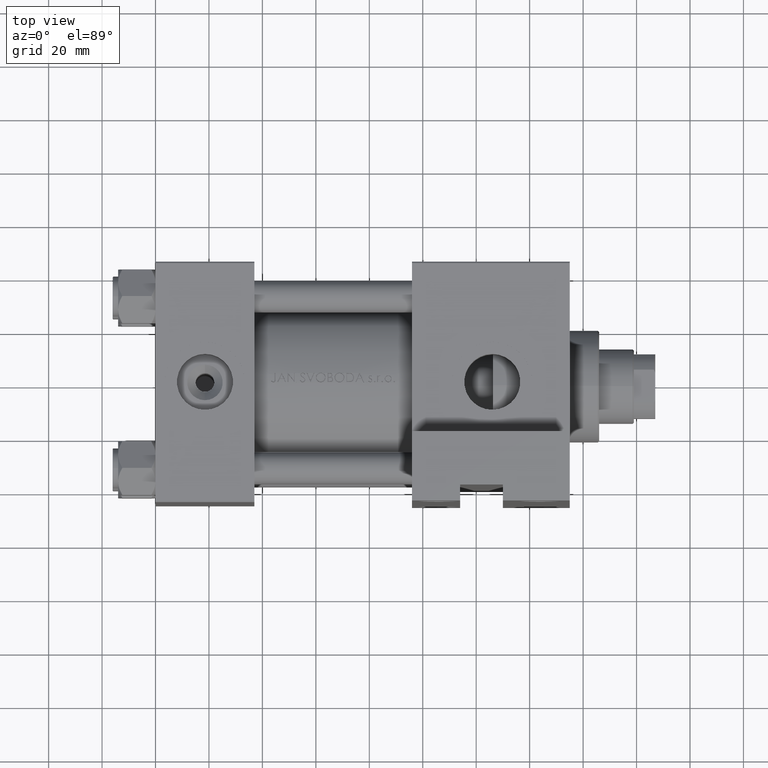
[diagram: clean part render]
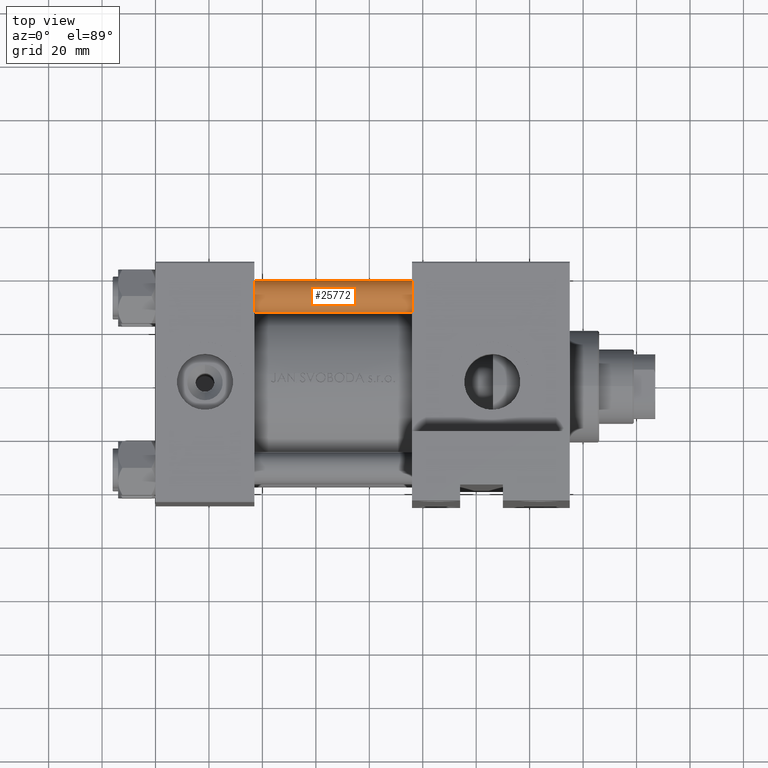
[diagram: same view with one face highlighted and labeled with its STEP entity id]
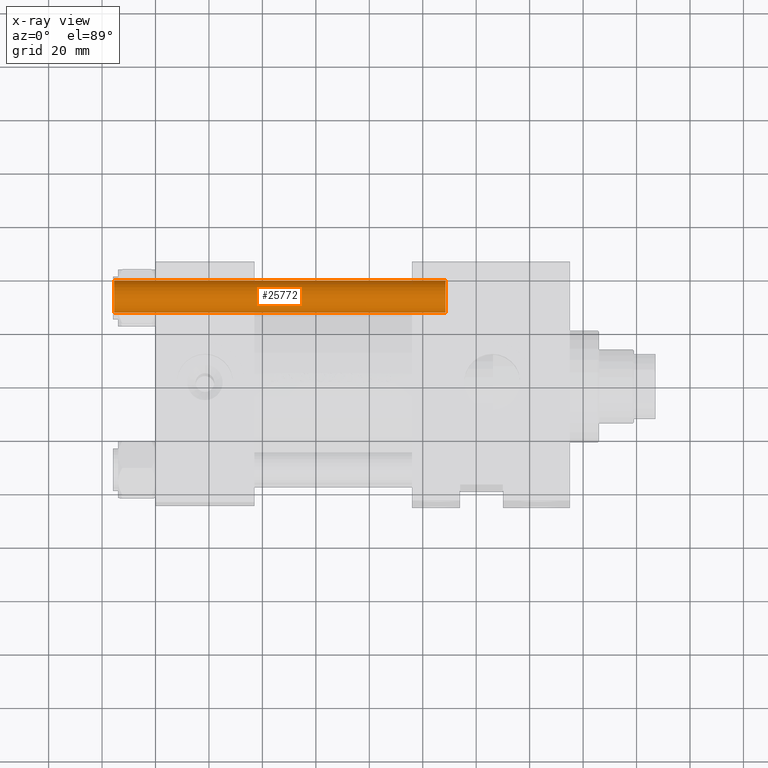
[diagram: x-ray of the same camera — body ghosted, the highlighted face saturated]
A machine part, top view. The second image highlights one B-rep face of the part: STEP entity #25772.
The next image is the same camera in x-ray: the body ghosted, the highlighted face saturated — about 0% of this face is hidden behind the body in this view.
In plain terms, the highlighted cylindrical surface (edge-blend (fillet) strip) has radius 6 mm, axis along (1, -0, 0).
Its self-contained STEP definition (entity closure, byte-faithful):
#1725 = CARTESIAN_POINT ( 'NONE',  ( 6.000000000000000888, 7.347880794884120722E-16, 0.4999999999999865663 ) ) ;
#2341 = CARTESIAN_POINT ( 'NONE',  ( 0.000000000000000000, 0.000000000000000000, 124.5000000000000000 ) ) ;
#4310 = ORIENTED_EDGE ( 'NONE', *, *, #8563, .F. ) ;
#5129 = VECTOR ( 'NONE', #14601, 1000.000000000000000 ) ;
#5440 = VERTEX_POINT ( 'NONE', #1725 ) ;
#7397 = CARTESIAN_POINT ( 'NONE',  ( 6.000000000000000888, 7.347880794884120722E-16, 125.0000000000000000 ) ) ;
#7478 = DIRECTION ( 'NONE',  ( -1.000000000000000000, 0.000000000000000000, 0.000000000000000000 ) ) ;
#8563 = EDGE_CURVE ( 'NONE', #30066, #5440, #41838, .T. ) ;
#9892 = CARTESIAN_POINT ( 'NONE',  ( -6.000000000000000888, 0.000000000000000000, 0.4999999999999865663 ) ) ;
#11843 = VERTEX_POINT ( 'NONE', #12088 ) ;
#12088 = CARTESIAN_POINT ( 'NONE',  ( -6.000000000000000888, 0.000000000000000000, 124.5000000000000000 ) ) ;
#13153 = DIRECTION ( 'NONE',  ( 1.000000000000000000, 0.000000000000000000, 0.000000000000000000 ) ) ;
#14062 = DIRECTION ( 'NONE',  ( 1.000000000000000000, 0.000000000000000000, 0.000000000000000000 ) ) ;
#14289 = EDGE_CURVE ( 'NONE', #30066, #11843, #22056, .T. ) ;
#14601 = DIRECTION ( 'NONE',  ( -0.000000000000000000, -0.000000000000000000, -1.000000000000000000 ) ) ;
#18381 = CARTESIAN_POINT ( 'NONE',  ( -6.000000000000000888, 0.000000000000000000, 125.0000000000000000 ) ) ;
#21404 = DIRECTION ( 'NONE',  ( -0.000000000000000000, -0.000000000000000000, -1.000000000000000000 ) ) ;
#21718 = DIRECTION ( 'NONE',  ( 0.000000000000000000, 0.000000000000000000, -1.000000000000000000 ) ) ;
#22056 = CIRCLE ( 'NONE', #23667, 6.000000000000000888 ) ;
#23667 = AXIS2_PLACEMENT_3D ( 'NONE', #2341, #21718, #13153 ) ;
#24112 = CARTESIAN_POINT ( 'NONE',  ( 6.000000000000000888, 7.347880794884120722E-16, 124.5000000000000000 ) ) ;
#24766 = VECTOR ( 'NONE', #26739, 1000.000000000000000 ) ;
#25529 = AXIS2_PLACEMENT_3D ( 'NONE', #40957, #29383, #14062 ) ;
#25772 = ADVANCED_FACE ( 'NONE', ( #45944 ), #36968, .T. ) ;
#26211 = ORIENTED_EDGE ( 'NONE', *, *, #14289, .T. ) ;
#26739 = DIRECTION ( 'NONE',  ( -0.000000000000000000, -0.000000000000000000, -1.000000000000000000 ) ) ;
#29076 = ORIENTED_EDGE ( 'NONE', *, *, #41308, .T. ) ;
#29383 = DIRECTION ( 'NONE',  ( -0.000000000000000000, -0.000000000000000000, 1.000000000000000000 ) ) ;
#30066 = VERTEX_POINT ( 'NONE', #24112 ) ;
#32635 = VERTEX_POINT ( 'NONE', #9892 ) ;
#34133 = CARTESIAN_POINT ( 'NONE',  ( 0.000000000000000000, 0.000000000000000000, 125.0000000000000000 ) ) ;
#36968 = CYLINDRICAL_SURFACE ( 'NONE', #44910, 6.000000000000000888 ) ;
#37961 = EDGE_CURVE ( 'NONE', #11843, #32635, #49037, .T. ) ;
#40957 = CARTESIAN_POINT ( 'NONE',  ( 0.000000000000000000, 0.000000000000000000, 0.4999999999999865663 ) ) ;
#41308 = EDGE_CURVE ( 'NONE', #32635, #5440, #43171, .T. ) ;
#41838 = LINE ( 'NONE', #7397, #24766 ) ;
#43171 = CIRCLE ( 'NONE', #25529, 6.000000000000000888 ) ;
#44149 = ORIENTED_EDGE ( 'NONE', *, *, #37961, .T. ) ;
#44477 = EDGE_LOOP ( 'NONE', ( #4310, #26211, #44149, #29076 ) ) ;
#44910 = AXIS2_PLACEMENT_3D ( 'NONE', #34133, #21404, #7478 ) ;
#45944 = FACE_OUTER_BOUND ( 'NONE', #44477, .T. ) ;
#49037 = LINE ( 'NONE', #18381, #5129 ) ;